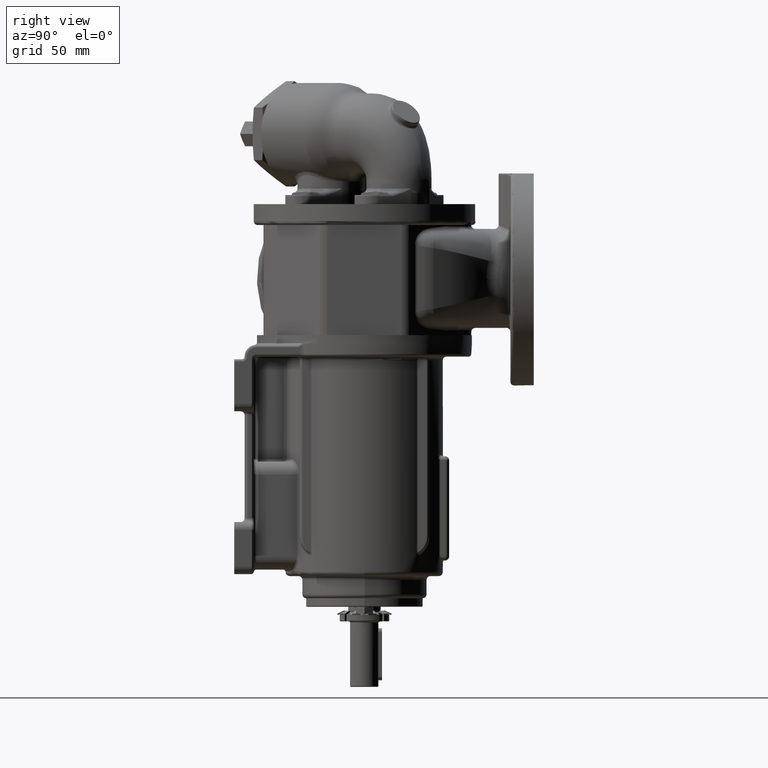
[diagram: clean part render]
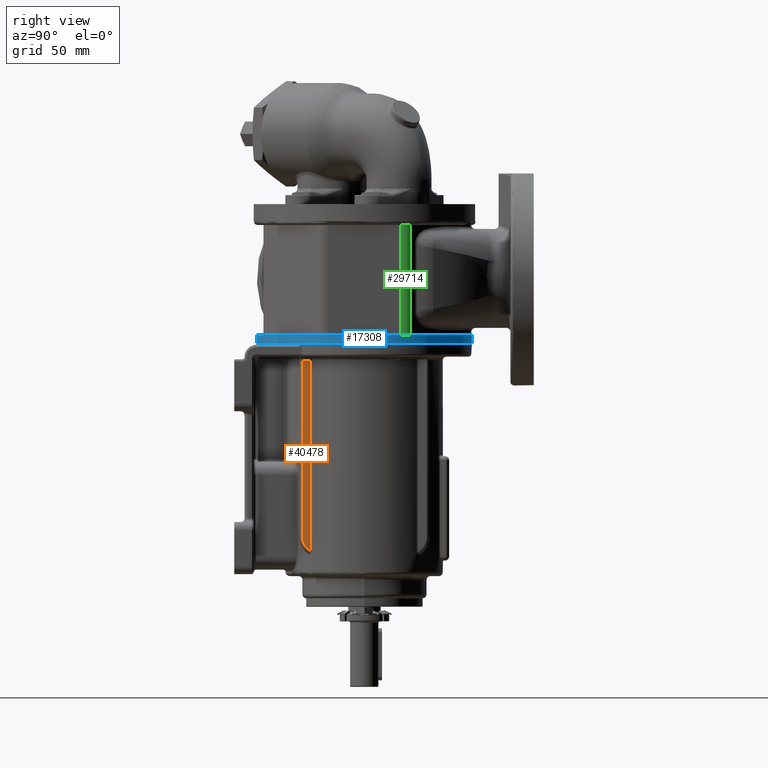
[diagram: same view with three faces highlighted in distinct colors, each labeled with its STEP entity id]
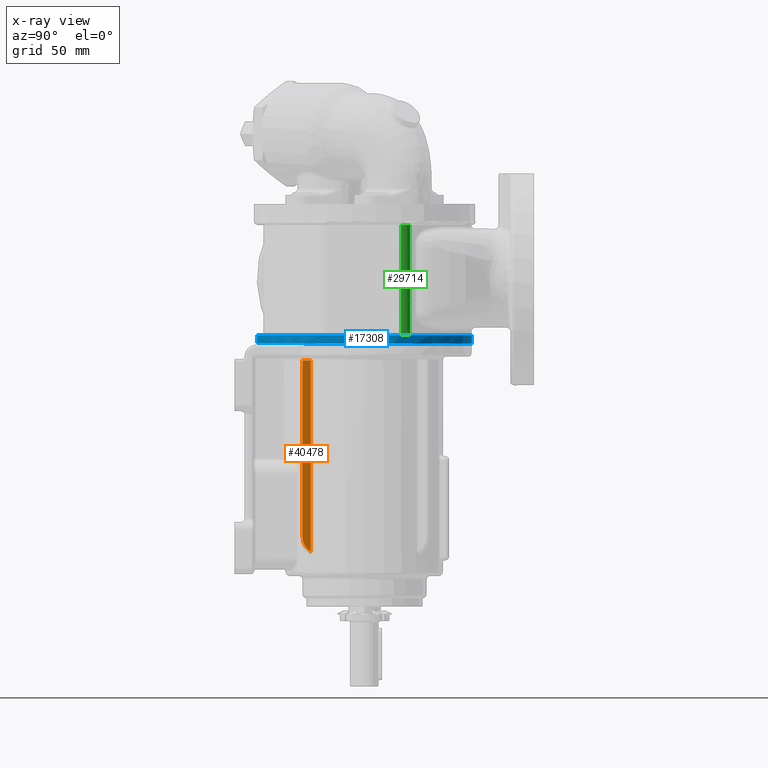
[diagram: x-ray of the same camera — body ghosted, the three highlighted faces saturated]
A machine part, right view with three faces highlighted in distinct colors.
The next image is the same camera in x-ray (body ghosted, the three faces saturated) — at least one of them is partly hidden behind the body in this view.
Their STEP definitions:

[orange] entity #40478 — the highlighted planar face has unit normal (-1, 0, 0).
#6405=CARTESIAN_POINT('',(4.5E1,-4.119769410949E1,-1.299999998841E1));
#10696=CARTESIAN_POINT('',(4.5E1,-3.45E1,-1.485E2));
#10697=DIRECTION('',(1.E0,0.E0,0.E0));
#10698=DIRECTION('',(0.E0,-1.E0,0.E0));
#10699=AXIS2_PLACEMENT_3D('',#10696,#10697,#10698);
#10701=DIRECTION('',(0.E0,3.804313977411E-11,-1.E0));
#10702=VECTOR('',#10701,1.355E2);
#10703=CARTESIAN_POINT('',(4.5E1,-4.750000000515E1,-1.3E1));
#10704=LINE('',#10703,#10702);
#10705=DIRECTION('',(-1.240176250210E-13,-1.E0,-1.838310437103E-9));
#10706=VECTOR('',#10705,6.302305895666E0);
#10707=CARTESIAN_POINT('',(4.5E1,-4.119769410949E1,-1.299999998841E1));
#10708=LINE('',#10707,#10706);
#10718=DIRECTION('',(-2.293751376053E-8,4.754432715346E-12,1.E0));
#10719=VECTOR('',#10718,1.466418361400E2);
#10720=CARTESIAN_POINT('',(4.500000336360E1,-4.119769411019E1,
-1.596418361285E2));
#10721=LINE('',#10720,#10719);
#12039=CARTESIAN_POINT('',(4.5E1,-4.75E1,-1.485E2));
#12040=CARTESIAN_POINT('',(4.5E1,-4.119772433118E1,-1.596418350725E2));
#12041=VERTEX_POINT('',#12039);
#12042=VERTEX_POINT('',#12040);
#12043=CARTESIAN_POINT('',(4.5E1,-4.750000000515E1,-1.3E1));
#12044=VERTEX_POINT('',#12043);
#12049=VERTEX_POINT('',#6405);
#40465=CARTESIAN_POINT('',(4.5E1,0.E0,0.E0));
#40466=DIRECTION('',(-1.E0,0.E0,0.E0));
#40467=DIRECTION('',(0.E0,0.E0,1.E0));
#40468=AXIS2_PLACEMENT_3D('',#40465,#40466,#40467);
#40469=PLANE('',#40468);
#40471=ORIENTED_EDGE('',*,*,#40470,.F.);
#40473=ORIENTED_EDGE('',*,*,#40472,.F.);
#40474=ORIENTED_EDGE('',*,*,#40456,.F.);
#40475=ORIENTED_EDGE('',*,*,#35874,.F.);
#40476=EDGE_LOOP('',(#40471,#40473,#40474,#40475));
#40477=FACE_OUTER_BOUND('',#40476,.F.);
#40478=ADVANCED_FACE('',(#40477),#40469,.F.);
#10700=CIRCLE('',#10699,1.3E1);
#35874=EDGE_CURVE('',#12049,#12044,#10708,.T.);
#40456=EDGE_CURVE('',#12044,#12041,#10704,.T.);
#40470=EDGE_CURVE('',#12042,#12049,#10721,.T.);
#40472=EDGE_CURVE('',#12041,#12042,#10700,.T.);

[blue] entity #17308 — the highlighted cylindrical surface (partial cylindrical patch) has radius 82.5 mm, axis along (0, 0, 1).
#1313=DIRECTION('',(0.E0,0.E0,1.E0));
#1314=VECTOR('',#1313,6.5E0);
#1315=CARTESIAN_POINT('',(-1.262916011621E-14,8.25E1,0.E0));
#1316=LINE('',#1315,#1314);
#1317=DIRECTION('',(0.E0,0.E0,-1.E0));
#1318=VECTOR('',#1317,6.127596138769E0);
#1319=CARTESIAN_POINT('',(0.E0,-8.25E1,6.5E0));
#1320=LINE('',#1319,#1318);
#1334=CARTESIAN_POINT('',(0.E0,0.E0,2.842170943040E-14));
#1335=DIRECTION('',(0.E0,0.E0,1.E0));
#1336=DIRECTION('',(8.285714285714E-1,-5.598833697790E-1,0.E0));
#1337=AXIS2_PLACEMENT_3D('',#1334,#1335,#1336);
#1339=CARTESIAN_POINT('',(0.E0,0.E0,6.5E0));
#1340=DIRECTION('',(0.E0,0.E0,-1.E0));
#1341=DIRECTION('',(3.430344200362E-1,-9.393228341047E-1,0.E0));
#1342=AXIS2_PLACEMENT_3D('',#1339,#1340,#1341);
#4674=CARTESIAN_POINT('',(0.E0,0.E0,6.5E0));
#4675=DIRECTION('',(0.E0,0.E0,-1.E0));
#4676=DIRECTION('',(1.099294372559E-1,9.939393939394E-1,0.E0));
#4677=AXIS2_PLACEMENT_3D('',#4674,#4675,#4676);
#4742=CARTESIAN_POINT('',(0.E0,0.E0,6.5E0));
#4743=DIRECTION('',(0.E0,0.E0,-1.E0));
#4744=DIRECTION('',(0.E0,1.E0,0.E0));
#4745=AXIS2_PLACEMENT_3D('',#4742,#4743,#4744);
#4784=CARTESIAN_POINT('',(0.E0,0.E0,6.5E0));
#4785=DIRECTION('',(0.E0,0.E0,-1.E0));
#4786=DIRECTION('',(4.217924256107E-1,9.066924228742E-1,0.E0));
#4787=AXIS2_PLACEMENT_3D('',#4784,#4785,#4786);
#4789=CARTESIAN_POINT('',(0.E0,0.E0,6.5E0));
#4790=DIRECTION('',(0.E0,0.E0,-1.E0));
#4791=DIRECTION('',(9.067800496702E-1,4.216040103226E-1,0.E0));
#4792=AXIS2_PLACEMENT_3D('',#4789,#4790,#4791);
#4794=CARTESIAN_POINT('',(0.E0,0.E0,6.5E0));
#4795=DIRECTION('',(0.E0,0.E0,-1.E0));
#4796=DIRECTION('',(9.393228341047E-1,3.430344200362E-1,0.E0));
#4797=AXIS2_PLACEMENT_3D('',#4794,#4795,#4796);
#4799=CARTESIAN_POINT('',(0.E0,0.E0,6.5E0));
#4800=DIRECTION('',(0.E0,0.E0,-1.E0));
#4801=DIRECTION('',(9.393228341047E-1,-3.430344200362E-1,0.E0));
#4802=AXIS2_PLACEMENT_3D('',#4799,#4800,#4801);
#4804=CARTESIAN_POINT('',(0.E0,0.E0,6.5E0));
#4805=DIRECTION('',(0.E0,0.E0,-1.E0));
#4806=DIRECTION('',(9.067800496702E-1,-4.216040103226E-1,0.E0));
#4807=AXIS2_PLACEMENT_3D('',#4804,#4805,#4806);
#4845=CARTESIAN_POINT('',(0.E0,0.E0,6.5E0));
#4846=DIRECTION('',(0.E0,0.E0,-1.E0));
#4847=DIRECTION('',(4.216040103226E-1,-9.067800496702E-1,0.E0));
#4848=AXIS2_PLACEMENT_3D('',#4845,#4846,#4847);
#4897=CARTESIAN_POINT('',(6.823560182754E1,-4.636973844258E1,
1.884061984085E-1));
#4898=CARTESIAN_POINT('',(6.825547313076E1,-4.634049673487E1,
1.547204207405E-1));
#4899=CARTESIAN_POINT('',(6.829543102552E1,-4.628162063107E1,
8.927124135652E-2));
#4900=CARTESIAN_POINT('',(6.833657560536E1,-4.622080725257E1,
2.930245842833E-2));
#4901=CARTESIAN_POINT('',(6.835715021525E1,-4.619036367041E1,
-6.253113335230E-10));
#5184=CARTESIAN_POINT('',(0.E0,0.E0,3.724038612307E-1));
#5185=DIRECTION('',(0.E0,0.E0,1.E0));
#5186=DIRECTION('',(0.E0,-1.E0,0.E0));
#5187=AXIS2_PLACEMENT_3D('',#5184,#5185,#5186);
#5270=CARTESIAN_POINT('',(6.769756809493E1,-4.715176847702E1,
3.731368951394E-1));
#5271=CARTESIAN_POINT('',(6.775849321567E1,-4.706428998853E1,
3.736033868738E-1));
#5272=CARTESIAN_POINT('',(6.788207922064E1,-4.688612005643E1,
3.671216906349E-1));
#5273=CARTESIAN_POINT('',(6.800213800812E1,-4.671156665606E1,
3.367430427231E-1));
#5274=CARTESIAN_POINT('',(6.806208929811E1,-4.662404959213E1,
3.143502136020E-1));
#5281=CARTESIAN_POINT('',(6.806208929811E1,-4.662404959213E1,
3.143502136020E-1));
#5282=CARTESIAN_POINT('',(6.807947018112E1,-4.659867692959E1,
3.078367881118E-1));
#5283=CARTESIAN_POINT('',(6.811289778791E1,-4.654981809638E1,
2.935359983308E-1));
#5284=CARTESIAN_POINT('',(6.815905204555E1,-4.648220855585E1,
2.674853095347E-1));
#5285=CARTESIAN_POINT('',(6.820165782045E1,-4.641966749431E1,
2.341183708749E-1));
#5286=CARTESIAN_POINT('',(6.822544716109E1,-4.638468158873E1,
2.056203183978E-1));
#5287=CARTESIAN_POINT('',(6.823560182754E1,-4.636973844258E1,
1.884061984085E-1));
#12650=CARTESIAN_POINT('',(6.835714285714E1,-4.619037800677E1,
2.842170943040E-14));
#12651=CARTESIAN_POINT('',(-1.421084471520E-14,8.25E1,2.842170943040E-14));
#12652=VERTEX_POINT('',#12650);
#12653=VERTEX_POINT('',#12651);
#12655=CARTESIAN_POINT('',(0.E0,-8.25E1,3.724038612307E-1));
#12657=VERTEX_POINT('',#12655);
#12658=CARTESIAN_POINT('',(6.769908493447E1,-4.714959065607E1,
3.724038612307E-1));
#12659=VERTEX_POINT('',#12658);
#12660=VERTEX_POINT('',#4897);
#12664=VERTEX_POINT('',#5274);
#13493=CARTESIAN_POINT('',(9.069178573609E0,8.2E1,6.5E0));
#13495=VERTEX_POINT('',#13493);
#13496=CARTESIAN_POINT('',(3.479787511288E1,7.480212488712E1,6.5E0));
#13498=VERTEX_POINT('',#13496);
#13500=CARTESIAN_POINT('',(7.749413381363E1,2.830033965299E1,6.5E0));
#13501=VERTEX_POINT('',#13500);
#13502=CARTESIAN_POINT('',(7.480935409779E1,3.478233085161E1,6.5E0));
#13503=VERTEX_POINT('',#13502);
#13508=CARTESIAN_POINT('',(2.830033965299E1,-7.749413381363E1,6.5E0));
#13509=VERTEX_POINT('',#13508);
#13510=CARTESIAN_POINT('',(3.478233085161E1,-7.480935409779E1,6.5E0));
#13511=VERTEX_POINT('',#13510);
#13512=CARTESIAN_POINT('',(7.480935409779E1,-3.478233085161E1,6.5E0));
#13513=VERTEX_POINT('',#13512);
#13514=CARTESIAN_POINT('',(7.749413381363E1,-2.830033965299E1,6.5E0));
#13515=VERTEX_POINT('',#13514);
#13516=CARTESIAN_POINT('',(-1.152742057700E-14,8.25E1,6.5E0));
#13517=VERTEX_POINT('',#13516);
#13518=CARTESIAN_POINT('',(0.E0,-8.25E1,6.5E0));
#13519=VERTEX_POINT('',#13518);
#17272=CARTESIAN_POINT('',(0.E0,0.E0,-3.05E0));
#17273=DIRECTION('',(0.E0,0.E0,1.E0));
#17274=DIRECTION('',(0.E0,-1.E0,0.E0));
#17275=AXIS2_PLACEMENT_3D('',#17272,#17273,#17274);
#17276=CYLINDRICAL_SURFACE('',#17275,8.25E1);
#17277=ORIENTED_EDGE('',*,*,#17251,.F.);
#17279=ORIENTED_EDGE('',*,*,#17278,.F.);
#17281=ORIENTED_EDGE('',*,*,#17280,.F.);
#17283=ORIENTED_EDGE('',*,*,#17282,.F.);
#17285=ORIENTED_EDGE('',*,*,#17284,.F.);
#17287=ORIENTED_EDGE('',*,*,#17286,.F.);
#17289=ORIENTED_EDGE('',*,*,#17288,.F.);
#17291=ORIENTED_EDGE('',*,*,#17290,.F.);
#17293=ORIENTED_EDGE('',*,*,#17292,.F.);
#17295=ORIENTED_EDGE('',*,*,#17294,.F.);
#17296=ORIENTED_EDGE('',*,*,#17232,.F.);
#17297=ORIENTED_EDGE('',*,*,#17267,.F.);
#17299=ORIENTED_EDGE('',*,*,#17298,.F.);
#17301=ORIENTED_EDGE('',*,*,#17300,.F.);
#17303=ORIENTED_EDGE('',*,*,#17302,.F.);
#17305=ORIENTED_EDGE('',*,*,#17304,.F.);
#17306=EDGE_LOOP('',(#17277,#17279,#17281,#17283,#17285,#17287,#17289,#17291,
#17293,#17295,#17296,#17297,#17299,#17301,#17303,#17305));
#17307=FACE_OUTER_BOUND('',#17306,.F.);
#17308=ADVANCED_FACE('',(#17307),#17276,.T.);
#1338=CIRCLE('',#1337,8.25E1);
#1343=CIRCLE('',#1342,8.25E1);
#4678=CIRCLE('',#4677,8.25E1);
#4746=CIRCLE('',#4745,8.25E1);
#4788=CIRCLE('',#4787,8.25E1);
#4793=CIRCLE('',#4792,8.25E1);
#4798=CIRCLE('',#4797,8.25E1);
#4803=CIRCLE('',#4802,8.25E1);
#4808=CIRCLE('',#4807,8.25E1);
#4849=CIRCLE('',#4848,8.25E1);
#4902=B_SPLINE_CURVE_WITH_KNOTS('',3,(#4897,#4898,#4899,#4900,#4901),
.UNSPECIFIED.,.F.,.F.,(4,1,4),(0.E0,5.E-1,1.E0),.UNSPECIFIED.);
#5188=CIRCLE('',#5187,8.25E1);
#5275=B_SPLINE_CURVE_WITH_KNOTS('',3,(#5270,#5271,#5272,#5273,#5274),
.UNSPECIFIED.,.F.,.F.,(4,1,4),(0.E0,5.E-1,1.E0),.UNSPECIFIED.);
#5288=B_SPLINE_CURVE_WITH_KNOTS('',3,(#5281,#5282,#5283,#5284,#5285,#5286,
#5287),.UNSPECIFIED.,.F.,.F.,(4,1,1,1,4),(0.E0,2.5E-1,5.E-1,7.5E-1,1.E0),
.UNSPECIFIED.);
#17232=EDGE_CURVE('',#12653,#13517,#1316,.T.);
#17251=EDGE_CURVE('',#13519,#12657,#1320,.T.);
#17267=EDGE_CURVE('',#12652,#12653,#1338,.T.);
#17278=EDGE_CURVE('',#13509,#13519,#1343,.T.);
#17280=EDGE_CURVE('',#13511,#13509,#4849,.T.);
#17282=EDGE_CURVE('',#13513,#13511,#4808,.T.);
#17284=EDGE_CURVE('',#13515,#13513,#4803,.T.);
#17286=EDGE_CURVE('',#13501,#13515,#4798,.T.);
#17288=EDGE_CURVE('',#13503,#13501,#4793,.T.);
#17290=EDGE_CURVE('',#13498,#13503,#4788,.T.);
#17292=EDGE_CURVE('',#13495,#13498,#4678,.T.);
#17294=EDGE_CURVE('',#13517,#13495,#4746,.T.);
#17298=EDGE_CURVE('',#12660,#12652,#4902,.T.);
#17300=EDGE_CURVE('',#12664,#12660,#5288,.T.);
#17302=EDGE_CURVE('',#12659,#12664,#5275,.T.);
#17304=EDGE_CURVE('',#12657,#12659,#5188,.T.);

[green] entity #29714 — the highlighted cylindrical surface (edge-blend (fillet) strip) has radius 10 mm, axis along (0, 0, 1).
#4190=DIRECTION('',(0.E0,0.E0,1.E0));
#4191=VECTOR('',#4190,8.45E1);
#4192=CARTESIAN_POINT('',(7.75E1,2.795786437627E1,6.5E0));
#4193=LINE('',#4192,#4191);
#4202=CARTESIAN_POINT('',(6.75E1,2.795786437627E1,9.1E1));
#4203=DIRECTION('',(0.E0,0.E0,1.E0));
#4204=DIRECTION('',(1.E0,1.179500941362E-13,0.E0));
#4205=AXIS2_PLACEMENT_3D('',#4202,#4203,#4204);
#4207=CARTESIAN_POINT('',(7.749413381363E1,2.830033965299E1,9.1E1));
#4208=CARTESIAN_POINT('',(7.748244067584E1,2.864156949292E1,9.1E1));
#4209=CARTESIAN_POINT('',(7.742407415542E1,2.932274533089E1,9.101104420955E1));
#4210=CARTESIAN_POINT('',(7.723258340075E1,3.032997039974E1,9.103641658192E1));
#4211=CARTESIAN_POINT('',(7.693913502622E1,3.131240468209E1,9.105358762480E1));
#4212=CARTESIAN_POINT('',(7.654671226101E1,3.225986614437E1,9.105358877955E1));
#4213=CARTESIAN_POINT('',(7.605955302905E1,3.316210898420E1,9.103641846366E1));
#4214=CARTESIAN_POINT('',(7.548273954765E1,3.400981030457E1,9.101104424401E1));
#4215=CARTESIAN_POINT('',(7.504236140836E1,3.453276805480E1,9.1E1));
#4216=CARTESIAN_POINT('',(7.480935409779E1,3.478233085161E1,9.1E1));
#4218=CARTESIAN_POINT('',(6.75E1,2.795786437627E1,9.1E1));
#4219=DIRECTION('',(0.E0,0.E0,1.E0));
#4220=DIRECTION('',(7.309354097794E-1,6.824466475342E-1,0.E0));
#4221=AXIS2_PLACEMENT_3D('',#4218,#4219,#4220);
#4223=CARTESIAN_POINT('',(6.75E1,2.795786437627E1,6.5E0));
#4224=DIRECTION('',(0.E0,0.E0,1.E0));
#4225=DIRECTION('',(7.309354097794E-1,6.824466475342E-1,0.E0));
#4226=AXIS2_PLACEMENT_3D('',#4223,#4224,#4225);
#4228=CARTESIAN_POINT('',(6.75E1,2.795786437627E1,6.5E0));
#4229=DIRECTION('',(0.E0,0.E0,1.E0));
#4230=DIRECTION('',(9.994133813635E-1,3.424752767189E-2,0.E0));
#4231=AXIS2_PLACEMENT_3D('',#4228,#4229,#4230);
#4233=CARTESIAN_POINT('',(6.75E1,2.795786437627E1,6.5E0));
#4234=DIRECTION('',(0.E0,0.E0,1.E0));
#4235=DIRECTION('',(1.E0,0.E0,0.E0));
#4236=AXIS2_PLACEMENT_3D('',#4233,#4234,#4235);
#4318=DIRECTION('',(0.E0,0.E0,1.E0));
#4319=VECTOR('',#4318,8.45E1);
#4320=CARTESIAN_POINT('',(7.457106781187E1,3.502893218813E1,6.5E0));
#4321=LINE('',#4320,#4319);
#13468=CARTESIAN_POINT('',(7.75E1,2.795786437627E1,6.5E0));
#13470=VERTEX_POINT('',#13468);
#13497=CARTESIAN_POINT('',(7.457106781187E1,3.502893218813E1,6.5E0));
#13499=VERTEX_POINT('',#13497);
#13500=CARTESIAN_POINT('',(7.749413381363E1,2.830033965299E1,6.5E0));
#13501=VERTEX_POINT('',#13500);
#13502=CARTESIAN_POINT('',(7.480935409779E1,3.478233085161E1,6.5E0));
#13503=VERTEX_POINT('',#13502);
#13532=CARTESIAN_POINT('',(7.75E1,2.795786437627E1,9.1E1));
#13534=VERTEX_POINT('',#13532);
#13574=CARTESIAN_POINT('',(7.457106781187E1,3.502893218813E1,9.1E1));
#13576=VERTEX_POINT('',#13574);
#13584=CARTESIAN_POINT('',(7.749413381363E1,2.830033965299E1,9.1E1));
#13585=VERTEX_POINT('',#13584);
#13586=CARTESIAN_POINT('',(7.480935409779E1,3.478233085161E1,9.1E1));
#13587=VERTEX_POINT('',#13586);
#29694=CARTESIAN_POINT('',(6.75E1,2.795786437627E1,-2.475994914780E2));
#29695=DIRECTION('',(0.E0,0.E0,1.E0));
#29696=DIRECTION('',(1.E0,0.E0,0.E0));
#29697=AXIS2_PLACEMENT_3D('',#29694,#29695,#29696);
#29698=CYLINDRICAL_SURFACE('',#29697,1.E1);
#29699=ORIENTED_EDGE('',*,*,#29675,.T.);
#29700=ORIENTED_EDGE('',*,*,#16111,.T.);
#29702=ORIENTED_EDGE('',*,*,#29701,.T.);
#29704=ORIENTED_EDGE('',*,*,#29703,.F.);
#29706=ORIENTED_EDGE('',*,*,#29705,.F.);
#29708=ORIENTED_EDGE('',*,*,#29707,.F.);
#29710=ORIENTED_EDGE('',*,*,#29709,.F.);
#29711=ORIENTED_EDGE('',*,*,#29686,.T.);
#29712=EDGE_LOOP('',(#29699,#29700,#29702,#29704,#29706,#29708,#29710,#29711));
#29713=FACE_OUTER_BOUND('',#29712,.F.);
#29714=ADVANCED_FACE('',(#29713),#29698,.T.);
#4206=CIRCLE('',#4205,1.E1);
#4217=B_SPLINE_CURVE_WITH_KNOTS('',3,(#4207,#4208,#4209,#4210,#4211,#4212,#4213,
#4214,#4215,#4216),.UNSPECIFIED.,.F.,.F.,(4,1,1,1,1,1,1,4),(0.E0,
1.428571428571E-1,2.857142857143E-1,4.285714285714E-1,5.714285714286E-1,
7.142857142857E-1,8.571428571429E-1,1.E0),.UNSPECIFIED.);
#4222=CIRCLE('',#4221,1.E1);
#4227=CIRCLE('',#4226,1.E1);
#4232=CIRCLE('',#4231,1.E1);
#4237=CIRCLE('',#4236,1.E1);
#16111=EDGE_CURVE('',#13585,#13587,#4217,.T.);
#29675=EDGE_CURVE('',#13534,#13585,#4206,.T.);
#29686=EDGE_CURVE('',#13470,#13534,#4193,.T.);
#29701=EDGE_CURVE('',#13587,#13576,#4222,.T.);
#29703=EDGE_CURVE('',#13499,#13576,#4321,.T.);
#29705=EDGE_CURVE('',#13503,#13499,#4227,.T.);
#29707=EDGE_CURVE('',#13501,#13503,#4232,.T.);
#29709=EDGE_CURVE('',#13470,#13501,#4237,.T.);